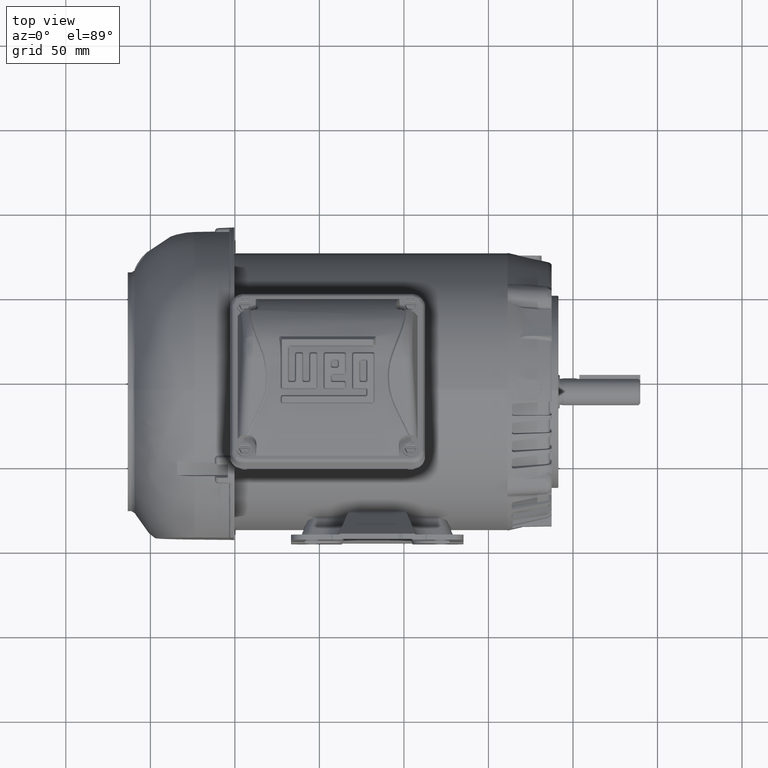
[diagram: clean part render]
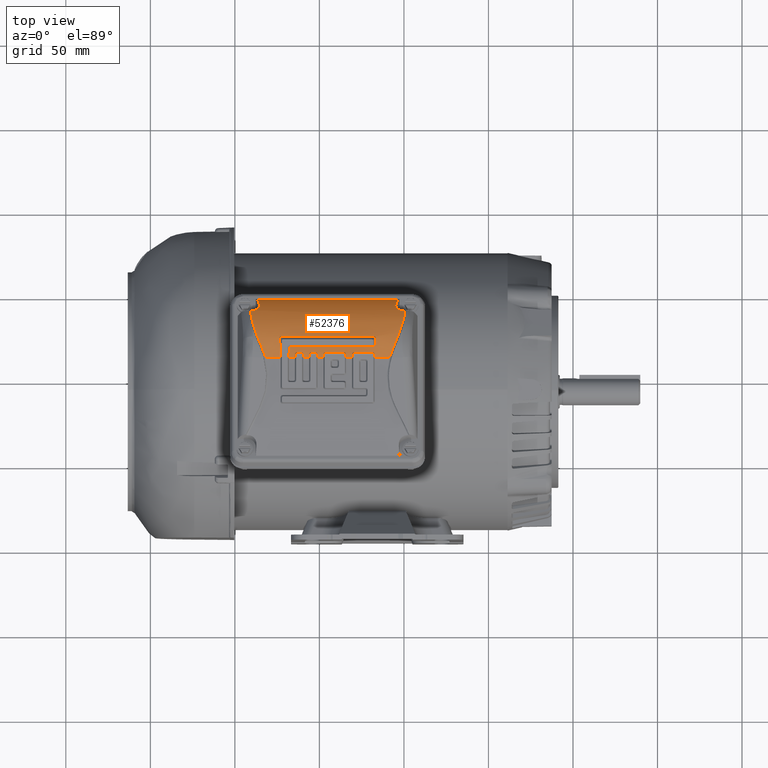
[diagram: same view with one face highlighted and labeled with its STEP entity id]
A machine part, top view. The second image highlights one B-rep face of the part: STEP entity #52376.
In plain terms, the highlighted cylindrical surface (partial cylindrical patch) has radius 35 mm, axis along (1, 0, -0).
Its self-contained STEP definition (entity closure, byte-faithful):
#189 = LINE ( 'NONE', #37885, #6628 ) ;
#274 = CARTESIAN_POINT ( 'NONE',  ( -1.466452934350112036, 1.006659624305443090, 5.639500285502733412 ) ) ;
#509 = CARTESIAN_POINT ( 'NONE',  ( 1.284718894867175276, 0.9460661894482007561, 5.664110852447361566 ) ) ;
#579 = CARTESIAN_POINT ( 'NONE',  ( -1.400515972239716467, 1.648601271075974095, 5.068232297163727473 ) ) ;
#650 = DIRECTION ( 'NONE',  ( -1.000000000000000000, -6.585600073891869161E-13, 1.161218977182799872E-13 ) ) ;
#710 = LINE ( 'NONE', #1516, #49013 ) ;
#875 = ORIENTED_EDGE ( 'NONE', *, *, #2237, .T. ) ;
#994 = CARTESIAN_POINT ( 'NONE',  ( -0.2031073955313105750, 0.5741215800176768802, 5.748789210275119466 ) ) ;
#1266 = CARTESIAN_POINT ( 'NONE',  ( -0.2389058627761657394, 0.5355945490757283434, 5.751540010358119126 ) ) ;
#1294 = CARTESIAN_POINT ( 'NONE',  ( 1.933233197566395001, 1.257718154086662876, 5.500648002945903059 ) ) ;
#1356 = CARTESIAN_POINT ( 'NONE',  ( 1.245232728132519728, 0.5741215800186008078, 5.748789210274779293 ) ) ;
#1516 = CARTESIAN_POINT ( 'NONE',  ( -2.040810988791196934, 1.834461883122429082, 4.417998778469157450 ) ) ;
#1518 = CARTESIAN_POINT ( 'NONE',  ( -0.7019752115818916893, 0.6606320762574469097, 5.738656359903063553 ) ) ;
#1586 = CARTESIAN_POINT ( 'NONE',  ( -0.2378695045080842507, 0.4571551337510771362, 5.753762487836040052 ) ) ;
#1844 = CARTESIAN_POINT ( 'NONE',  ( -2.040810988792657543, 0.4571551337500944778, 5.753762487836457495 ) ) ;
#2124 = EDGE_CURVE ( 'NONE', #9608, #28891, #24688, .T. ) ;
#2206 = ORIENTED_EDGE ( 'NONE', *, *, #2124, .T. ) ;
#2237 = EDGE_CURVE ( 'NONE', #32734, #21962, #33329, .T. ) ;
#2311 = CARTESIAN_POINT ( 'NONE',  ( 0.09430545460199721286, 0.5412370511233103310, 5.751205430180874600 ) ) ;
#2423 = CARTESIAN_POINT ( 'NONE',  ( -0.3951705769299347359, 0.5687753932731278717, 5.749235892290123218 ) ) ;
#2484 = VERTEX_POINT ( 'NONE', #8535 ) ;
#2566 = ORIENTED_EDGE ( 'NONE', *, *, #29687, .T. ) ;
#2583 = CARTESIAN_POINT ( 'NONE',  ( 1.296849037721556908, 0.9442196768828987619, 5.664810342050635050 ) ) ;
#2858 = ORIENTED_EDGE ( 'NONE', *, *, #19261, .T. ) ;
#3226 = CARTESIAN_POINT ( 'NONE',  ( -0.5706114307873294544, 0.5412370511228862258, 5.751205430181029143 ) ) ;
#3470 = CARTESIAN_POINT ( 'NONE',  ( -1.251654500711387730, 0.4571551337505984636, 5.753762487836276307 ) ) ;
#3761 = VECTOR ( 'NONE', #9628, 39.37007874015748143 ) ;
#3775 = CARTESIAN_POINT ( 'NONE',  ( -0.9027863898974115564, 0.4571551337506527535, 5.753762487836197259 ) ) ;
#3930 = CARTESIAN_POINT ( 'NONE',  ( 1.299380469571228103, 0.7396624327257854681, 5.724491838111709363 ) ) ;
#3973 = B_SPLINE_CURVE_WITH_KNOTS ( 'NONE', 3,
 ( #19515, #28420, #3226, #40929, #20314, #36864, #48792, #28154, #40120, #48527 ),
 .UNSPECIFIED., .F., .F.,
 ( 4, 2, 2, 2, 4 ),
 ( 3.469446951953614189E-18, 0.0004309042933996566410, 0.0008618085867993098125, 0.001292712880198962876, 0.001723617173598616156 ),
 .UNSPECIFIED. ) ;
#3983 = EDGE_CURVE ( 'NONE', #28456, #52996, #28435, .T. ) ;
#4099 = CARTESIAN_POINT ( 'NONE',  ( -1.347499175956810902, 0.7160025159534055827, 5.729231997978716961 ) ) ;
#4131 = CARTESIAN_POINT ( 'NONE',  ( -0.5703279472027472652, 0.4571551337508653612, 5.753762487836119099 ) ) ;
#4324 = CARTESIAN_POINT ( 'NONE',  ( -1.567467633986744158, 1.324174238711606888, 5.447649192385124017 ) ) ;
#4361 = CARTESIAN_POINT ( 'NONE',  ( -1.431675185181719545, 1.601160484825227437, 5.144033777448451694 ) ) ;
#4407 = CARTESIAN_POINT ( 'NONE',  ( -2.040810988792736147, 0.5741215800165023753, 5.748789210275552009 ) ) ;
#4495 = LINE ( 'NONE', #37333, #32335 ) ;
#4566 = CARTESIAN_POINT ( 'NONE',  ( -0.9139300102685649074, 0.9442100614471790054, 5.664813976310134613 ) ) ;
#4590 = CARTESIAN_POINT ( 'NONE',  ( -1.460941677914902037, 0.9918341266495268593, 5.645878965871017563 ) ) ;
#4812 = CARTESIAN_POINT ( 'NONE',  ( 1.817564707440174177, 0.9233346135093167817, 5.672580171568031737 ) ) ;
#4835 = ORIENTED_EDGE ( 'NONE', *, *, #10522, .T. ) ;
#4862 = CARTESIAN_POINT ( 'NONE',  ( -1.528115850324147873, 1.186831287847459393, 5.544712337206945563 ) ) ;
#5052 = CARTESIAN_POINT ( 'NONE',  ( -0.2381529880926690490, 0.5412370511231003878, 5.751205430180953648 ) ) ;
#5063 = CARTESIAN_POINT ( 'NONE',  ( 1.807514307211985694, 1.608838963630776053, 5.132397815322599754 ) ) ;
#5081 = CARTESIAN_POINT ( 'NONE',  ( 1.830297180186496453, 0.9561057022526889826, 5.660256144333112083 ) ) ;
#5125 = CARTESIAN_POINT ( 'NONE',  ( -1.589255485270685719, 1.418614578989097819, 5.363794630249837603 ) ) ;
#5279 = CARTESIAN_POINT ( 'NONE',  ( 0.6217099877010905384, 0.5298803435237874337, 5.751842014026653516 ) ) ;
#5501 = LINE ( 'NONE', #47001, #49800 ) ;
#5601 = EDGE_CURVE ( 'NONE', #31975, #42598, #17896, .T. ) ;
#5813 = ORIENTED_EDGE ( 'NONE', *, *, #32725, .T. ) ;
#6204 = CARTESIAN_POINT ( 'NONE',  ( -1.418467638778607265, 0.8809837207993671537, 5.689480208133996797 ) ) ;
#6257 = VECTOR ( 'NONE', #24033, 39.37007874015748143 ) ;
#6628 = VECTOR ( 'NONE', #33520, 39.37007874015748143 ) ;
#6629 = CARTESIAN_POINT ( 'NONE',  ( -0.3765608720272020093, 0.4571551337511574609, 5.753762487836072026 ) ) ;
#6640 = ORIENTED_EDGE ( 'NONE', *, *, #19374, .T. ) ;
#6765 = CARTESIAN_POINT ( 'NONE',  ( 1.782998289173523654, 1.706177845771787549, 4.957785730032794547 ) ) ;
#6868 = EDGE_CURVE ( 'NONE', #23931, #32734, #34604, .T. ) ;
#6922 = CARTESIAN_POINT ( 'NONE',  ( 0.09355257991849655341, 0.5355945490759403960, 5.751540010358040078 ) ) ;
#7174 = CARTESIAN_POINT ( 'NONE',  ( -1.481755870683612475, 1.834461883121358161, 4.417998778469550913 ) ) ;
#7273 = CARTESIAN_POINT ( 'NONE',  ( -1.423438148582142571, 1.785368060120958278, 4.787829620818037313 ) ) ;
#7307 = CARTESIAN_POINT ( 'NONE',  ( 1.806383100128525099, 1.785368060122961342, 4.787829620817416476 ) ) ;
#7554 = CARTESIAN_POINT ( 'NONE',  ( 1.297250279500883563, 0.7288202824350535902, 5.726726703301005195 ) ) ;
#7671 = EDGE_CURVE ( 'NONE', #31250, #16539, #49398, .T. ) ;
#7881 = CARTESIAN_POINT ( 'NONE',  ( -0.04410242933271878857, 0.4814025021392540071, 5.753762487835992978 ) ) ;
#7907 = LINE ( 'NONE', #24430, #35234 ) ;
#7968 = CARTESIAN_POINT ( 'NONE',  ( -0.5298293338894709548, 0.5741215800174677142, 5.748789210275196737 ) ) ;
#8170 = CARTESIAN_POINT ( 'NONE',  ( -1.450041959617669685, 1.586746268159912265, 5.165075401057964477 ) ) ;
#8327 = EDGE_CURVE ( 'NONE', #51928, #18292, #37733, .T. ) ;
#8411 = CARTESIAN_POINT ( 'NONE',  ( -1.548867159639266022, 1.256086408840686008, 5.498716739003790543 ) ) ;
#8502 = EDGE_CURVE ( 'NONE', #25944, #19779, #11878, .T. ) ;
#8535 = CARTESIAN_POINT ( 'NONE',  ( 1.285731341446281428, 0.4571551337522181124, 5.753762487835685668 ) ) ;
#8616 = CARTESIAN_POINT ( 'NONE',  ( 1.274870006870209460, 0.7048685109252528225, 5.731315241731405052 ) ) ;
#8648 = B_SPLINE_CURVE_WITH_KNOTS ( 'NONE', 3,
 ( #11215, #18559, #35106, #6629 ),
 .UNSPECIFIED., .F., .F.,
 ( 4, 4 ),
 ( 0.000000000000000000, 1.000000000000000000 ),
 .UNSPECIFIED. ) ;
#8852 = CARTESIAN_POINT ( 'NONE',  ( -0.2387650361526417464, 0.5298803435232385395, 5.751842014026850691 ) ) ;
#8880 = CARTESIAN_POINT ( 'NONE',  ( 1.749245462982391919, 0.7582068930042163979, 5.721160243230220210 ) ) ;
#8921 = CARTESIAN_POINT ( 'NONE',  ( -2.040810988792818748, 0.7004029715545964097, 5.732122486022362295 ) ) ;
#8929 = CARTESIAN_POINT ( 'NONE',  ( -1.477266659313943853, 1.036087531391977956, 5.626430332971059656 ) ) ;
#9145 = CARTESIAN_POINT ( 'NONE',  ( 1.905460906856886627, 1.169049106543245786, 5.555643847564699200 ) ) ;
#9177 = CARTESIAN_POINT ( 'NONE',  ( -0.9243861128490153956, 0.9380569255343909063, 5.667124033285590556 ) ) ;
#9244 = ORIENTED_EDGE ( 'NONE', *, *, #22474, .T. ) ;
#9341 = CARTESIAN_POINT ( 'NONE',  ( 0.7586102919313484350, 0.5298803435238748083, 5.751842014026621541 ) ) ;
#9460 = CARTESIAN_POINT ( 'NONE',  ( -1.347499175956810902, 0.7160025159534055827, 5.729231997978716961 ) ) ;
#9491 = CARTESIAN_POINT ( 'NONE',  ( 0.6217099877010905384, 0.5298803435237874337, 5.751842014026653516 ) ) ;
#9551 = B_SPLINE_CURVE_WITH_KNOTS ( 'NONE', 3,
 ( #34327, #50886, #26144, #22122 ),
 .UNSPECIFIED., .F., .F.,
 ( 4, 4 ),
 ( 0.000000000000000000, 1.000000000000000000 ),
 .UNSPECIFIED. ) ;
#9608 = VERTEX_POINT ( 'NONE', #36497 ) ;
#9628 = DIRECTION ( 'NONE',  ( 1.000000000000000000, 6.384077141365900647E-13, -2.323788532076114928E-13 ) ) ;
#9646 = CARTESIAN_POINT ( 'NONE',  ( -0.2317146877734809485, 0.5570179302209636862, 5.750145575975799339 ) ) ;
#9659 = CARTESIAN_POINT ( 'NONE',  ( 1.819326356215502871, 1.597456164105511833, 5.149443168283458050 ) ) ;
#9907 = LINE ( 'NONE', #18583, #3761 ) ;
#10190 = ORIENTED_EDGE ( 'NONE', *, *, #8502, .T. ) ;
#10223 = CARTESIAN_POINT ( 'NONE',  ( 1.864700822229850230, 1.834461883122433301, 4.417998778469157450 ) ) ;
#10230 = B_SPLINE_CURVE_WITH_KNOTS ( 'NONE', 3,
 ( #24427, #37734, #36942, #12760, #579, #33101, #32839, #28759, #4361, #8170, #32299, #24697, #49674, #37458, #41266, #29026 ),
 .UNSPECIFIED., .F., .F.,
 ( 4, 2, 2, 2, 2, 2, 2, 4 ),
 ( 0.000000000000000000, 0.002371341522123194840, 0.003557012283184750844, 0.004742683044246307281, 0.005928353805307863718, 0.007114024566369420155, 0.008299695327430977460, 0.009485366088492533029 ),
 .UNSPECIFIED. ) ;
#10238 = CARTESIAN_POINT ( 'NONE',  ( -0.07887394008947788693, 0.5741215800177570383, 5.748789210275087491 ) ) ;
#10427 = CARTESIAN_POINT ( 'NONE',  ( 0.09458893818656050057, 0.4814025021393517623, 5.753762487835960115 ) ) ;
#10505 = CARTESIAN_POINT ( 'NONE',  ( -0.04320689768823646193, 0.5298803435233637726, 5.751842014026810723 ) ) ;
#10522 = EDGE_CURVE ( 'NONE', #19038, #51928, #36851, .T. ) ;
#10831 = CARTESIAN_POINT ( 'NONE',  ( -0.3799007926168078142, 0.5520517780008874498, 5.750501495916783945 ) ) ;
#11009 = CYLINDRICAL_SURFACE ( 'NONE', #38043, 1.377952755905512028 ) ;
#11108 = CARTESIAN_POINT ( 'NONE',  ( 1.634599452259939190, 0.4571551337524385472, 5.753762487835607509 ) ) ;
#11215 = CARTESIAN_POINT ( 'NONE',  ( -0.3756653403829000037, 0.5298803435231503878, 5.751842014026889771 ) ) ;
#11359 = EDGE_CURVE ( 'NONE', #29533, #39940, #10230, .T. ) ;
#11368 = CARTESIAN_POINT ( 'NONE',  ( 1.660630073845786869, 0.5442113689305013713, 5.753762487835596851 ) ) ;
#11496 = EDGE_CURVE ( 'NONE', #34975, #9608, #50475, .T. ) ;
#11530 = CARTESIAN_POINT ( 'NONE',  ( -2.040810988792980396, 0.4571551337500944778, 4.375809731930944579 ) ) ;
#11608 = CARTESIAN_POINT ( 'NONE',  ( 1.299380469571228103, 0.7396624327257854681, 5.724491838111709363 ) ) ;
#11878 = B_SPLINE_CURVE_WITH_KNOTS ( 'NONE', 3,
 ( #51688, #22409, #14524, #2583, #35413, #40013, #31853, #19136, #48415, #35673, #18872, #43555 ),
 .UNSPECIFIED., .F., .F.,
 ( 4, 2, 2, 2, 2, 4 ),
 ( 5.594315114139762021E-17, 0.0002341133517512138627, 0.0004682267035023717806, 0.0009364534070046824123, 0.001404680110506993044, 0.001872906814009303459 ),
 .UNSPECIFIED. ) ;
#11879 = LINE ( 'NONE', #45243, #13287 ) ;
#11955 = CARTESIAN_POINT ( 'NONE',  ( 0.7586102919313484350, 0.5298803435238748083, 5.751842014026621541 ) ) ;
#11958 = EDGE_CURVE ( 'NONE', #52996, #22963, #48206, .T. ) ;
#12064 = CARTESIAN_POINT ( 'NONE',  ( -1.347499175956810902, 0.7160025159534055827, 5.729231997978716961 ) ) ;
#12171 = EDGE_CURVE ( 'NONE', #49083, #46156, #710, .T. ) ;
#12276 = EDGE_CURVE ( 'NONE', #21659, #19763, #9551, .T. ) ;
#12406 = CARTESIAN_POINT ( 'NONE',  ( -1.610315097424049213, 1.556247672758876099, 5.206923049485157051 ) ) ;
#12607 = CARTESIAN_POINT ( 'NONE',  ( -2.040810988792736147, 0.5741215800165031524, 5.748789210275552009 ) ) ;
#12649 = EDGE_CURVE ( 'NONE', #42553, #49083, #36586, .T. ) ;
#12661 = EDGE_CURVE ( 'NONE', #31315, #44710, #17238, .T. ) ;
#12673 = CARTESIAN_POINT ( 'NONE',  ( -0.6561107254276437040, 0.7004029715554782598, 5.732122486022039887 ) ) ;
#12760 = CARTESIAN_POINT ( 'NONE',  ( -1.398384362301367423, 1.656314335770129764, 5.054788471283070628 ) ) ;
#12812 = VERTEX_POINT ( 'NONE', #28423 ) ;
#12989 = CARTESIAN_POINT ( 'NONE',  ( -1.504154572089307473, 1.112434754973292028, 5.588727938309429710 ) ) ;
#13072 = EDGE_CURVE ( 'NONE', #47176, #21659, #189, .T. ) ;
#13200 = CARTESIAN_POINT ( 'NONE',  ( 1.895964191323639580, 1.139677719759191632, 5.572901022698395046 ) ) ;
#13227 = CARTESIAN_POINT ( 'NONE',  ( -0.9360394657918602590, 0.8946963304671003980, 5.682451036452960125 ) ) ;
#13228 = VERTEX_POINT ( 'NONE', #44070 ) ;
#13255 = CARTESIAN_POINT ( 'NONE',  ( -0.2381680150562869580, 0.5056555117522215648, 5.753122329899637677 ) ) ;
#13287 = VECTOR ( 'NONE', #40908, 39.37007874015748143 ) ;
#13424 = CARTESIAN_POINT ( 'NONE',  ( 0.5803158427431929223, 0.5741215800181763695, 5.748789210274938277 ) ) ;
#13468 = CARTESIAN_POINT ( 'NONE',  ( 1.988412195904385449, 1.506111031233708264, 5.273225475716125210 ) ) ;
#13472 = CARTESIAN_POINT ( 'NONE',  ( 1.258658648405314162, 0.7004029715566529868, 5.732122486021605567 ) ) ;
#13489 = DIRECTION ( 'NONE',  ( -1.000000000000000000, -6.384077141365900647E-13, 2.323788532076114928E-13 ) ) ;
#13500 = CARTESIAN_POINT ( 'NONE',  ( -0.9017739433193563414, 0.9460661894468052058, 5.664110852447874045 ) ) ;
#13665 = CARTESIAN_POINT ( 'NONE',  ( 1.253004549288059044, 0.7004029715566968406, 5.732122486021591357 ) ) ;
#13742 = CARTESIAN_POINT ( 'NONE',  ( 1.730444122822631936, 0.7160025179009448237, 5.729231997605906734 ) ) ;
#14007 = CARTESIAN_POINT ( 'NONE',  ( -0.7019752115818916893, 0.6606320762574469097, 5.738656359903063553 ) ) ;
#14013 = CARTESIAN_POINT ( 'NONE',  ( 1.909653922545787363, 1.182333373575261914, 5.547508307864492672 ) ) ;
#14053 = CARTESIAN_POINT ( 'NONE',  ( -0.7019752115818916893, 0.6606320762574469097, 5.738656359903063553 ) ) ;
#14228 = CARTESIAN_POINT ( 'NONE',  ( -0.7001202575780127724, 0.6716684133451746863, 5.736972220205326600 ) ) ;
#14288 = ORIENTED_EDGE ( 'NONE', *, *, #13072, .T. ) ;
#14335 = CARTESIAN_POINT ( 'NONE',  ( -1.448080005782699464, 0.9579989087723921326, 5.659519110613126180 ) ) ;
#14336 = ORIENTED_EDGE ( 'NONE', *, *, #44237, .T. ) ;
#14506 = CARTESIAN_POINT ( 'NONE',  ( -0.6915590905923066911, 0.6860113456131202714, 5.734629844317383984 ) ) ;
#14524 = CARTESIAN_POINT ( 'NONE',  ( 1.290879591717237096, 0.9457213802924461232, 5.664241905080012351 ) ) ;
#14570 = CARTESIAN_POINT ( 'NONE',  ( -0.04383475681276469138, 0.5413002080951242467, 5.751201467228138853 ) ) ;
#14631 = CARTESIAN_POINT ( 'NONE',  ( -0.4113323827841409153, 0.5741215800175442086, 5.748789210275165651 ) ) ;
#14791 = VERTEX_POINT ( 'NONE', #21572 ) ;
#14827 = VERTEX_POINT ( 'NONE', #31825 ) ;
#15008 = CARTESIAN_POINT ( 'NONE',  ( 0.09369340654202144847, 0.5298803435234519243, 5.751842014026771643 ) ) ;
#15040 = CARTESIAN_POINT ( 'NONE',  ( 0.1236304963566428328, 0.5730818960170048770, 5.748879107235877584 ) ) ;
#15168 = CARTESIAN_POINT ( 'NONE',  ( 1.730444122822631936, 0.7160025179009448237, 5.729231997605906734 ) ) ;
#15184 = CARTESIAN_POINT ( 'NONE',  ( -0.04320689768823646193, 0.5298803435233637726, 5.751842014026810723 ) ) ;
#15293 = EDGE_CURVE ( 'NONE', #39183, #25944, #7907, .T. ) ;
#15307 = EDGE_CURVE ( 'NONE', #13228, #36235, #24165, .T. ) ;
#15607 = CARTESIAN_POINT ( 'NONE',  ( 1.279510734958694274, 0.5571065861153865484, 5.750139029795521495 ) ) ;
#15609 = ORIENTED_EDGE ( 'NONE', *, *, #18586, .T. ) ;
#15636 = ORIENTED_EDGE ( 'NONE', *, *, #11496, .T. ) ;
#16375 = LINE ( 'NONE', #24750, #25724 ) ;
#16526 = CARTESIAN_POINT ( 'NONE',  ( -0.9358952638026181159, 0.9177676126366740572, 5.674511790485415652 ) ) ;
#16539 = VERTEX_POINT ( 'NONE', #51010 ) ;
#16548 = CARTESIAN_POINT ( 'NONE',  ( -1.604350663666099130, 1.504536968062009761, 5.272187340731867344 ) ) ;
#16587 = CARTESIAN_POINT ( 'NONE',  ( -1.309633345818226768, 0.6310030717153022328, 5.745488479309863727 ) ) ;
#16941 =( BOUNDED_CURVE ( )  B_SPLINE_CURVE ( 3, ( #23848, #48817, #40415, #48012 ),
 .UNSPECIFIED., .F., .T. ) 
 B_SPLINE_CURVE_WITH_KNOTS ( ( 4, 4 ),
 ( 2.818469218007245480, 2.935108938681141755 ),
 .UNSPECIFIED. ) 
 CURVE ( )  GEOMETRIC_REPRESENTATION_ITEM ( )  RATIONAL_B_SPLINE_CURVE ( ( 1.000000000000000000, 0.9988665859326359975, 0.9988665859326359975, 1.000000000000000000 ) ) 
 REPRESENTATION_ITEM ( '' )  );
#17234 = CARTESIAN_POINT ( 'NONE',  ( 0.6069792638774589300, 0.5654526716924909158, 5.749506552584928265 ) ) ;
#17238 = B_SPLINE_CURVE_WITH_KNOTS ( 'NONE', 3,
 ( #11108, #11368, #40399, #15168 ),
 .UNSPECIFIED., .F., .F.,
 ( 4, 4 ),
 ( 0.000000000000000000, 1.000000000000000000 ),
 .UNSPECIFIED. ) ;
#17344 = CARTESIAN_POINT ( 'NONE',  ( -1.448564288203611827, 0.9592601420705078041, 5.659026321799833781 ) ) ;
#17495 = ORIENTED_EDGE ( 'NONE', *, *, #7671, .T. ) ;
#17611 = CARTESIAN_POINT ( 'NONE',  ( -0.2387650361526417464, 0.5298803435232385395, 5.751842014026850691 ) ) ;
#17831 = CARTESIAN_POINT ( 'NONE',  ( 1.951536006804194479, 1.325601141440422071, 5.448949016627516073 ) ) ;
#17891 = CARTESIAN_POINT ( 'NONE',  ( 1.250959830689174934, 0.5741215800186051377, 5.748789210274777517 ) ) ;
#17896 = B_SPLINE_CURVE_WITH_KNOTS ( 'NONE', 3,
 ( #1356, #17891, #32137, #36247, #42558, #15607, #44369, #19424, #35972, #51965 ),
 .UNSPECIFIED., .F., .F.,
 ( 4, 2, 2, 2, 4 ),
 ( 0.000000000000000000, 0.0004311163130257834593, 0.0008622326260515669185, 0.001293348939077350324, 0.001724465252103133837 ),
 .UNSPECIFIED. ) ;
#17941 = EDGE_CURVE ( 'NONE', #18831, #28456, #20871, .T. ) ;
#18164 = B_SPLINE_CURVE_WITH_KNOTS ( 'NONE', 3,
 ( #22124, #18582, #43264, #34861, #51403, #14506, #38674, #14228, #31032, #1518 ),
 .UNSPECIFIED., .F., .F.,
 ( 4, 2, 2, 2, 4 ),
 ( 0.000000000000000000, 0.0004260741118579666016, 0.0008521482237159332031, 0.001278222335573899696, 0.001704296447431866406 ),
 .UNSPECIFIED. ) ;
#18292 = VERTEX_POINT ( 'NONE', #26682 ) ;
#18380 = CARTESIAN_POINT ( 'NONE',  ( 1.730444122822631936, 0.7160025179009448237, 5.729231997605906734 ) ) ;
#18556 = CARTESIAN_POINT ( 'NONE',  ( 0.7628363623119983616, 0.5520397422409054622, 5.750502427286818374 ) ) ;
#18559 = CARTESIAN_POINT ( 'NONE',  ( -0.3762623614792259263, 0.5056555117520713516, 5.753122329899673204 ) ) ;
#18582 = CARTESIAN_POINT ( 'NONE',  ( -0.6617752943715606850, 0.7004029715554745961, 5.732122486022041663 ) ) ;
#18583 = CARTESIAN_POINT ( 'NONE',  ( -2.040810988792657543, 0.4571551337500952550, 5.753762487836457495 ) ) ;
#18586 = EDGE_CURVE ( 'NONE', #39940, #41651, #5501, .T. ) ;
#18727 = CARTESIAN_POINT ( 'NONE',  ( 1.864700822229850230, 1.834461883122433301, 4.417998778469157450 ) ) ;
#18830 = CARTESIAN_POINT ( 'NONE',  ( 0.09458893818657895802, 0.4571551337514574986, 5.753762487835961004 ) ) ;
#18831 = VERTEX_POINT ( 'NONE', #25413 ) ;
#18861 = CARTESIAN_POINT ( 'NONE',  ( 0.09791947692267032044, 0.5520397422404835774, 5.750502427286973806 ) ) ;
#18872 = CARTESIAN_POINT ( 'NONE',  ( 1.319889754279700123, 0.9004942892745102512, 5.680509535119444564 ) ) ;
#18973 = CARTESIAN_POINT ( 'NONE',  ( -0.3903960642065283371, 0.5654526716918544249, 5.749506552585160080 ) ) ;
#19038 = VERTEX_POINT ( 'NONE', #1586 ) ;
#19136 = CARTESIAN_POINT ( 'NONE',  ( 1.317264153815112415, 0.9235772547895318985, 5.672433861959983226 ) ) ;
#19198 = CARTESIAN_POINT ( 'NONE',  ( -0.4170594853407952884, 0.5741215800175394346, 5.748789210275166539 ) ) ;
#19261 = EDGE_CURVE ( 'NONE', #46569, #19038, #4495, .T. ) ;
#19374 = EDGE_CURVE ( 'NONE', #14827, #48849, #9907, .T. ) ;
#19395 = VERTEX_POINT ( 'NONE', #13424 ) ;
#19424 = CARTESIAN_POINT ( 'NONE',  ( 1.285999013965888782, 0.5413002080959736784, 5.751201467227827990 ) ) ;
#19515 = CARTESIAN_POINT ( 'NONE',  ( -0.5712234788473047331, 0.5298803435230260428, 5.751842014026928851 ) ) ;
#19527 = ORIENTED_EDGE ( 'NONE', *, *, #40762, .T. ) ;
#19763 = VERTEX_POINT ( 'NONE', #34799 ) ;
#19779 = VERTEX_POINT ( 'NONE', #50827 ) ;
#20114 = DIRECTION ( 'NONE',  ( 1.000000000000000000, 6.384077141365900647E-13, -2.323788532076114928E-13 ) ) ;
#20314 = CARTESIAN_POINT ( 'NONE',  ( -0.5641731304681417702, 0.5570179302207481919, 5.750145575975876611 ) ) ;
#20479 = ORIENTED_EDGE ( 'NONE', *, *, #3983, .T. ) ;
#20595 = CARTESIAN_POINT ( 'NONE',  ( -0.9369448056032938510, 0.9004943076629545740, 5.680509528961939836 ) ) ;
#20608 = CARTESIAN_POINT ( 'NONE',  ( -0.9360394657918602590, 0.8946963304671003980, 5.682451036452960125 ) ) ;
#20833 = CARTESIAN_POINT ( 'NONE',  ( 1.264298117029624580, 0.7012899658727579366, 5.731964327865846975 ) ) ;
#20871 = B_SPLINE_CURVE_WITH_KNOTS ( 'NONE', 3,
 ( #47407, #10238, #26753, #43323, #35195, #22712, #51727, #14570, #31100, #10505 ),
 .UNSPECIFIED., .F., .F.,
 ( 4, 2, 2, 2, 4 ),
 ( 1.269581763356547708E-17, 0.0004311163130257983670, 0.0008622326260515840489, 0.001293348939077369839, 0.001724465252103155521 ),
 .UNSPECIFIED. ) ;
#20878 = CARTESIAN_POINT ( 'NONE',  ( -1.532363075432224608, 1.200538500351216120, 5.536062064239580138 ) ) ;
#20921 = CARTESIAN_POINT ( 'NONE',  ( -1.277685122297357978, 0.5442113689286237621, 5.753762487836278083 ) ) ;
#20924 = VERTEX_POINT ( 'NONE', #14053 ) ;
#21074 = CARTESIAN_POINT ( 'NONE',  ( 1.783592822554676660, 1.648217464276488853, 5.068889739249851090 ) ) ;
#21116 = CARTESIAN_POINT ( 'NONE',  ( -0.9079731923485838685, 0.9457147424543287384, 5.664244423083099278 ) ) ;
#21304 = CARTESIAN_POINT ( 'NONE',  ( 0.5860429452998479061, 0.5741215800181811435, 5.748789210274938277 ) ) ;
#21361 = CARTESIAN_POINT ( 'NONE',  ( 1.880446586188643909, 1.093424462915193018, 5.598252850539789272 ) ) ;
#21563 = CARTESIAN_POINT ( 'NONE',  ( 0.5803158427431929223, 0.5741215800181763695, 5.748789210274938277 ) ) ;
#21572 = CARTESIAN_POINT ( 'NONE',  ( 0.1350875514998484406, 0.5741215800178929296, 5.748789210275039530 ) ) ;
#21597 = CARTESIAN_POINT ( 'NONE',  ( -0.2088279463380156020, 0.5730818960167981535, 5.748879107235953967 ) ) ;
#21611 = CARTESIAN_POINT ( 'NONE',  ( 1.833261743013533840, 1.586552956018922211, 5.165353715004570745 ) ) ;
#21629 = CARTESIAN_POINT ( 'NONE',  ( 1.900431594979517858, 1.153334092211641959, 5.565045040698684886 ) ) ;
#21659 = VERTEX_POINT ( 'NONE', #4131 ) ;
#21764 = ORIENTED_EDGE ( 'NONE', *, *, #15307, .T. ) ;
#21818 = CARTESIAN_POINT ( 'NONE',  ( 0.7780718193936551064, 0.5687488178506109326, 5.749238060340733369 ) ) ;
#21892 = CARTESIAN_POINT ( 'NONE',  ( 1.993260044425110289, 1.556247672589820885, 5.206923049022313954 ) ) ;
#21913 = EDGE_CURVE ( 'NONE', #46156, #29533, #38329, .T. ) ;
#21962 = VERTEX_POINT ( 'NONE', #12673 ) ;
#22122 = CARTESIAN_POINT ( 'NONE',  ( -0.5712234788473047331, 0.5298803435230260428, 5.751842014026928851 ) ) ;
#22124 = CARTESIAN_POINT ( 'NONE',  ( -0.6561107254276437040, 0.7004029715554782598, 5.732122486022039887 ) ) ;
#22152 = CARTESIAN_POINT ( 'NONE',  ( 1.944619626253153655, 1.556247684797442909, 5.206923058586149899 ) ) ;
#22216 = CARTESIAN_POINT ( 'NONE',  ( -1.385102393275262189, 0.8004124840450309586, 5.713088256302001788 ) ) ;
#22381 = CARTESIAN_POINT ( 'NONE',  ( 0.6022047511540529197, 0.5687753932737638074, 5.749235892289892291 ) ) ;
#22409 = CARTESIAN_POINT ( 'NONE',  ( 1.287827763124208769, 0.9460661894482033096, 5.664110852447364230 ) ) ;
#22435 = CARTESIAN_POINT ( 'NONE',  ( 1.908979339056760205, 1.180185317524999000, 5.548834864194443384 ) ) ;
#22474 = EDGE_CURVE ( 'NONE', #14791, #19395, #33215, .T. ) ;
#22524 = CARTESIAN_POINT ( 'NONE',  ( 1.286626873090415346, 0.5298803435242125381, 5.751842014026495420 ) ) ;
#22557 = ORIENTED_EDGE ( 'NONE', *, *, #24140, .T. ) ;
#22712 = CARTESIAN_POINT ( 'NONE',  ( -0.05032303581995838798, 0.5571065861145371167, 5.750139029795830581 ) ) ;
#22963 = VERTEX_POINT ( 'NONE', #30680 ) ;
#23016 = ORIENTED_EDGE ( 'NONE', *, *, #41813, .T. ) ;
#23447 = CARTESIAN_POINT ( 'NONE',  ( 0.1350875514998484406, 0.5741215800178929296, 5.748789210275039530 ) ) ;
#23653 = ORIENTED_EDGE ( 'NONE', *, *, #43130, .T. ) ;
#23848 = CARTESIAN_POINT ( 'NONE',  ( 1.318984417339809090, 0.8946963304685394691, 5.682451036452441429 ) ) ;
#23880 = CARTESIAN_POINT ( 'NONE',  ( -0.04410242933247740527, 0.4571551337513700686, 5.753762487835992978 ) ) ;
#23931 = VERTEX_POINT ( 'NONE', #3930 ) ;
#23995 = ORIENTED_EDGE ( 'NONE', *, *, #32881, .T. ) ;
#24033 = DIRECTION ( 'NONE',  ( 1.000000000000000000, 6.384077141365900647E-13, -2.323788532076114928E-13 ) ) ;
#24140 = EDGE_CURVE ( 'NONE', #16539, #46569, #8648, .T. ) ;
#24165 = LINE ( 'NONE', #49677, #43043 ) ;
#24427 = CARTESIAN_POINT ( 'NONE',  ( -1.400053337626946837, 1.706177845769753842, 4.957785730033527294 ) ) ;
#24430 = CARTESIAN_POINT ( 'NONE',  ( -2.040810988792991942, 0.9460661894460767884, 5.664110852448133393 ) ) ;
#24567 = ORIENTED_EDGE ( 'NONE', *, *, #30135, .T. ) ;
#24653 = CARTESIAN_POINT ( 'NONE',  ( -0.9027863898974964885, 0.6062207480182502106, 5.753762487836215911 ) ) ;
#24688 =( BOUNDED_CURVE ( )  B_SPLINE_CURVE ( 3, ( #3775, #24653, #33054, #20608 ),
 .UNSPECIFIED., .F., .F. ) 
 B_SPLINE_CURVE_WITH_KNOTS ( ( 4, 4 ),
 ( -1.225686219186172821E-13, 0.3231234355825494675 ),
 .UNSPECIFIED. ) 
 CURVE ( )  GEOMETRIC_REPRESENTATION_ITEM ( )  RATIONAL_B_SPLINE_CURVE ( ( 1.000000000000000000, 0.9913181796627441589, 0.9913181796627441589, 1.000000000000000000 ) ) 
 REPRESENTATION_ITEM ( '' )  );
#24697 = CARTESIAN_POINT ( 'NONE',  ( -1.485948626255871208, 1.568612991621208153, 5.190372093760692529 ) ) ;
#24719 = VECTOR ( 'NONE', #39540, 39.37007874015748143 ) ;
#24750 = CARTESIAN_POINT ( 'NONE',  ( -2.040810988792736147, 0.5741215800165023753, 5.748789210275552009 ) ) ;
#24803 = CARTESIAN_POINT ( 'NONE',  ( -0.7090193147218640801, 0.4571551337511141622, 5.753762487836150186 ) ) ;
#25137 = B_SPLINE_CURVE_WITH_KNOTS ( 'NONE', 3,
 ( #22524, #52529, #36009, #39071 ),
 .UNSPECIFIED., .F., .F.,
 ( 4, 4 ),
 ( 0.000000000000000000, 1.000000000000000000 ),
 .UNSPECIFIED. ) ;
#25161 = CARTESIAN_POINT ( 'NONE',  ( -0.9220010890556921135, 0.9399875673367467099, 5.666402345460330281 ) ) ;
#25183 = CARTESIAN_POINT ( 'NONE',  ( -1.516345801037440433, 1.149201329082846668, 5.568103681319398923 ) ) ;
#25213 = CARTESIAN_POINT ( 'NONE',  ( 0.6208144560566078995, 0.4814025021396004522, 5.753762487835837547 ) ) ;
#25379 = CARTESIAN_POINT ( 'NONE',  ( 1.883067623800477541, 1.563970708188612724, 5.196626315676433627 ) ) ;
#25394 = CARTESIAN_POINT ( 'NONE',  ( 1.811805298300957823, 0.9087993052710690023, 5.677684362555242892 ) ) ;
#25413 = CARTESIAN_POINT ( 'NONE',  ( -0.08460104264613248215, 0.5741215800177520423, 5.748789210275087491 ) ) ;
#25444 = CARTESIAN_POINT ( 'NONE',  ( -1.449289896257218491, 0.9611511671443191407, 5.658285853703853618 ) ) ;
#25592 = ORIENTED_EDGE ( 'NONE', *, *, #28410, .T. ) ;
#25652 = CARTESIAN_POINT ( 'NONE',  ( 1.781418765558484552, 1.655932805152874554, 5.055463388306669081 ) ) ;
#25666 = CARTESIAN_POINT ( 'NONE',  ( 1.979097816857727121, 1.449660266227055239, 5.335372108559004012 ) ) ;
#25724 = VECTOR ( 'NONE', #49198, 39.37007874015748143 ) ;
#25743 = CARTESIAN_POINT ( 'NONE',  ( -2.040810988792657543, 0.4571551337500944778, 5.753762487836457495 ) ) ;
#25919 = CARTESIAN_POINT ( 'NONE',  ( 1.928681374385939451, 1.556247684797436914, 5.206923058586149011 ) ) ;
#25944 = VERTEX_POINT ( 'NONE', #509 ) ;
#26122 = CARTESIAN_POINT ( 'NONE',  ( 0.7733055682853742230, 0.5654301475007700306, 5.749508429514323282 ) ) ;
#26144 = CARTESIAN_POINT ( 'NONE',  ( -0.5706264577509496672, 0.5056555117519174747, 5.753122329899721166 ) ) ;
#26178 = CARTESIAN_POINT ( 'NONE',  ( 1.790380900386661311, 1.632484026468541183, 5.095247961166266215 ) ) ;
#26245 = VERTEX_POINT ( 'NONE', #7968 ) ;
#26390 = CARTESIAN_POINT ( 'NONE',  ( 0.7885473817459687229, 0.5730818960174267618, 5.748879107235725705 ) ) ;
#26682 = CARTESIAN_POINT ( 'NONE',  ( -0.1973708911948066635, 0.5741215800176795447, 5.748789210275118577 ) ) ;
#26753 = CARTESIAN_POINT ( 'NONE',  ( -0.07320309233961792839, 0.5730977645152917077, 5.748877758893210732 ) ) ;
#26780 = EDGE_CURVE ( 'NONE', #21962, #20924, #18164, .T. ) ;
#27227 = CARTESIAN_POINT ( 'NONE',  ( 0.1007437549211835648, 0.5570179302211701877, 5.750145575975721179 ) ) ;
#27320 = EDGE_CURVE ( 'NONE', #42598, #2484, #25137, .T. ) ;
#27345 = CARTESIAN_POINT ( 'NONE',  ( -0.3762931995074279556, 0.5413002080949108619, 5.751201467228214348 ) ) ;
#27608 = CARTESIAN_POINT ( 'NONE',  ( -0.3756653403829000037, 0.5298803435231503878, 5.751842014026889771 ) ) ;
#27659 = CARTESIAN_POINT ( 'NONE',  ( -0.04320689768823646193, 0.5298803435233637726, 5.751842014026810723 ) ) ;
#27754 = CARTESIAN_POINT ( 'NONE',  ( 0.09369340654202144847, 0.5298803435234519243, 5.751842014026771643 ) ) ;
#28154 = CARTESIAN_POINT ( 'NONE',  ( -0.5412863890326782279, 0.5730818960165826592, 5.748879107236030350 ) ) ;
#28228 = ORIENTED_EDGE ( 'NONE', *, *, #11359, .T. ) ;
#28349 = ORIENTED_EDGE ( 'NONE', *, *, #17941, .T. ) ;
#28410 = EDGE_CURVE ( 'NONE', #19779, #23931, #16941, .T. ) ;
#28420 = CARTESIAN_POINT ( 'NONE',  ( -0.5713643054708275049, 0.5355945490755158467, 5.751540010358198174 ) ) ;
#28423 = CARTESIAN_POINT ( 'NONE',  ( 0.6217099877010905384, 0.5298803435237874337, 5.751842014026653516 ) ) ;
#28435 = B_SPLINE_CURVE_WITH_KNOTS ( 'NONE', 3,
 ( #27659, #52897, #7881, #23880 ),
 .UNSPECIFIED., .F., .F.,
 ( 4, 4 ),
 ( 0.000000000000000000, 1.000000000000000000 ),
 .UNSPECIFIED. ) ;
#28456 = VERTEX_POINT ( 'NONE', #15184 ) ;
#28759 = CARTESIAN_POINT ( 'NONE',  ( -1.424015716189988012, 1.609008192771061996, 5.132248963955442278 ) ) ;
#28891 = VERTEX_POINT ( 'NONE', #31387 ) ;
#28918 = ORIENTED_EDGE ( 'NONE', *, *, #53127, .T. ) ;
#29026 = CARTESIAN_POINT ( 'NONE',  ( -1.561674674706336585, 1.556247684795204700, 5.206923058586968800 ) ) ;
#29193 = CARTESIAN_POINT ( 'NONE',  ( 1.779089258336630452, 1.692940322044326429, 4.986195781032128238 ) ) ;
#29237 = CARTESIAN_POINT ( 'NONE',  ( -0.9343566407046867139, 0.9234962952986753848, 5.672463204761492683 ) ) ;
#29259 = CARTESIAN_POINT ( 'NONE',  ( -1.607891204759878567, 1.531179708289113206, 5.240073803935302088 ) ) ;
#29316 = ORIENTED_EDGE ( 'NONE', *, *, #5601, .T. ) ;
#29447 = CARTESIAN_POINT ( 'NONE',  ( 1.777741184571381305, 1.678545080869209283, 5.014506214506895709 ) ) ;
#29482 = CARTESIAN_POINT ( 'NONE',  ( -0.9017739433193563414, 0.9460661894468052058, 5.664110852447874045 ) ) ;
#29515 = CARTESIAN_POINT ( 'NONE',  ( -1.454329189322220328, 0.9743477595501303101, 5.653039832645606388 ) ) ;
#29533 = VERTEX_POINT ( 'NONE', #48560 ) ;
#29591 = ORIENTED_EDGE ( 'NONE', *, *, #45440, .T. ) ;
#29671 = CARTESIAN_POINT ( 'NONE',  ( 0.6210821285765605326, 0.5413002080955474637, 5.751201467227981645 ) ) ;
#29687 = EDGE_CURVE ( 'NONE', #41651, #31511, #33561, .T. ) ;
#29778 = CARTESIAN_POINT ( 'NONE',  ( -1.530259439625506479, 1.193730439485959138, 5.540377394592748139 ) ) ;
#29808 = CARTESIAN_POINT ( 'NONE',  ( 0.6211129666047628950, 0.5056555117526415621, 5.753122329899445830 ) ) ;
#29881 = VECTOR ( 'NONE', #36245, 39.37007874015748143 ) ;
#30092 = DIRECTION ( 'NONE',  ( 1.000000000000000000, 6.384077141365900647E-13, -2.323788532076114928E-13 ) ) ;
#30127 = CARTESIAN_POINT ( 'NONE',  ( -1.400053337626946837, 1.706177845769753842, 4.957785730033527294 ) ) ;
#30135 = EDGE_CURVE ( 'NONE', #28891, #39183, #43270, .T. ) ;
#30260 = CARTESIAN_POINT ( 'NONE',  ( 1.869240306680249653, 1.568492432389760882, 5.190535314949768164 ) ) ;
#30553 = CARTESIAN_POINT ( 'NONE',  ( 1.828943311330041288, 0.9525899602247785980, 5.661617243892156814 ) ) ;
#30680 = CARTESIAN_POINT ( 'NONE',  ( 0.09458893818657895802, 0.4571551337514574986, 5.753762487835961004 ) ) ;
#30744 = CARTESIAN_POINT ( 'NONE',  ( 0.8000044368891732205, 0.5741215800183165907, 5.748789210274882322 ) ) ;
#31032 = CARTESIAN_POINT ( 'NONE',  ( -0.7015851934706537341, 0.6662340879072218280, 5.737819963364379383 ) ) ;
#31100 = CARTESIAN_POINT ( 'NONE',  ( -0.04306604312135265539, 0.5355956829100585459, 5.751539950433374848 ) ) ;
#31250 = VERTEX_POINT ( 'NONE', #19198 ) ;
#31315 = VERTEX_POINT ( 'NONE', #33803 ) ;
#31387 = CARTESIAN_POINT ( 'NONE',  ( -0.9360394657918602590, 0.8946963304671003980, 5.682451036452960125 ) ) ;
#31511 = VERTEX_POINT ( 'NONE', #12064 ) ;
#31576 = CARTESIAN_POINT ( 'NONE',  ( 0.1293510471633366743, 0.5741215800178872675, 5.748789210275042194 ) ) ;
#31825 = CARTESIAN_POINT ( 'NONE',  ( 0.6208144560567422365, 0.4571551337517952840, 5.753762487835843764 ) ) ;
#31853 = CARTESIAN_POINT ( 'NONE',  ( 1.311697193483172930, 0.9338586135653399456, 5.668689278486066740 ) ) ;
#31975 = VERTEX_POINT ( 'NONE', #38760 ) ;
#32132 = DIRECTION ( 'NONE',  ( 1.000000000000000000, 6.384077141365900647E-13, -2.323788532076114928E-13 ) ) ;
#32137 = CARTESIAN_POINT ( 'NONE',  ( 1.256630678439035087, 0.5730977645161404732, 5.748877758892903422 ) ) ;
#32299 = CARTESIAN_POINT ( 'NONE',  ( -1.460731800353598731, 1.580120183047659888, 5.174433491400485252 ) ) ;
#32335 = VECTOR ( 'NONE', #33786, 39.37007874015748143 ) ;
#32549 = ORIENTED_EDGE ( 'NONE', *, *, #48440, .T. ) ;
#32555 = CARTESIAN_POINT ( 'NONE',  ( 0.7595058235758872511, 0.4814025021397578263, 5.753762487835806461 ) ) ;
#32617 = B_SPLINE_CURVE_WITH_KNOTS ( 'NONE', 3,
 ( #13742, #8880, #46299, #43045, #46576, #25394, #4812, #33827, #47117, #30553, #38719, #42499, #5081, #50656, #50384, #21361, #37924, #13200, #21629, #9145, #46848, #22435, #14013, #1294, #17831, #25666, #13468, #21892 ),
 .UNSPECIFIED., .F., .F.,
 ( 4, 2, 2, 1, 1, 1, 1, 2, 2, 2, 2, 1, 1, 2, 2, 2, 4 ),
 ( 0.000000000000000000, 0.1249999999999533984, 0.1874999999999295563, 0.2187499999999176215, 0.2343749999999114875, 0.2421874999999084066, 0.2460937499999072409, 0.2480468749999066858, 0.2499999999999061306, 0.3749999999999167333, 0.4374999999999222844, 0.4687499999999256151, 0.4843749999999263367, 0.4921874999999266698, 0.4999999999999270583, 0.7499999999999634737, 1.000000000000000000 ),
 .UNSPECIFIED. ) ;
#32628 = ORIENTED_EDGE ( 'NONE', *, *, #27320, .T. ) ;
#32725 = EDGE_CURVE ( 'NONE', #47389, #34066, #46127, .T. ) ;
#32734 = VERTEX_POINT ( 'NONE', #13665 ) ;
#32751 = CARTESIAN_POINT ( 'NONE',  ( 1.286626873090415346, 0.5298803435242125381, 5.751842014026495420 ) ) ;
#32797 = CARTESIAN_POINT ( 'NONE',  ( -0.2387650361526417464, 0.5298803435232385395, 5.751842014026850691 ) ) ;
#32839 = CARTESIAN_POINT ( 'NONE',  ( -1.411896675446542737, 1.624734552867219461, 5.107741478322584072 ) ) ;
#32881 = EDGE_CURVE ( 'NONE', #31511, #34975, #41622, .T. ) ;
#32991 = B_SPLINE_CURVE_WITH_KNOTS ( 'NONE', 3,
 ( #27754, #6922, #2311, #18861, #27227, #52198, #43812, #15040, #31576, #23447 ),
 .UNSPECIFIED., .F., .F.,
 ( 4, 2, 2, 2, 4 ),
 ( 2.447512862436146500E-17, 0.0004309042933996375590, 0.0008618085867992507235, 0.001292712880198863780, 0.001723617173598476944 ),
 .UNSPECIFIED. ) ;
#33015 = CARTESIAN_POINT ( 'NONE',  ( 1.253004549288059044, 0.7004029715566968406, 5.732122486021591357 ) ) ;
#33019 = ORIENTED_EDGE ( 'NONE', *, *, #12276, .T. ) ;
#33054 = CARTESIAN_POINT ( 'NONE',  ( -0.9139678237286141815, 0.7533451209635420032, 5.729783825604381597 ) ) ;
#33101 = CARTESIAN_POINT ( 'NONE',  ( -1.407283415644739799, 1.632762678214328300, 5.094794994916947317 ) ) ;
#33110 = CARTESIAN_POINT ( 'NONE',  ( -1.251654500711387730, 0.4571551337505984636, 5.753762487836276307 ) ) ;
#33180 = B_SPLINE_CURVE_WITH_KNOTS ( 'NONE', 3,
 ( #9491, #29808, #25213, #45597 ),
 .UNSPECIFIED., .F., .F.,
 ( 4, 4 ),
 ( 0.000000000000000000, 1.000000000000000000 ),
 .UNSPECIFIED. ) ;
#33215 = LINE ( 'NONE', #12607, #29881 ) ;
#33329 = LINE ( 'NONE', #8921, #52851 ) ;
#33349 = CARTESIAN_POINT ( 'NONE',  ( -0.2378695045080842507, 0.4571551337510771362, 5.753762487836040052 ) ) ;
#33520 = DIRECTION ( 'NONE',  ( 1.000000000000000000, 6.384077141365900647E-13, -2.323788532076114928E-13 ) ) ;
#33561 = B_SPLINE_CURVE_WITH_KNOTS ( 'NONE', 3,
 ( #42277, #29259, #16548, #45828, #5125, #50437, #4324, #49637, #8411, #41491, #38228, #20878, #29778, #46353, #4862, #25183, #12989, #37424, #8929, #274, #4590, #29515, #46085, #25444, #17344, #14335, #47168, #6204, #22216, #9460 ),
 .UNSPECIFIED., .F., .F.,
 ( 4, 2, 2, 2, 2, 1, 1, 2, 2, 2, 2, 1, 1, 1, 1, 2, 2, 4 ),
 ( 0.000000000000000000, 0.1250000000000112688, 0.2500000000000225375, 0.3750000000000338063, 0.4375000000000396905, 0.4687500000000425771, 0.4843750000000432987, 0.4921875000000442424, 0.5000000000000452971, 0.6250000000000566214, 0.6875000000000620615, 0.7187500000000645040, 0.7343750000000656142, 0.7421875000000669464, 0.7460937500000671685, 0.7480468750000668354, 0.7500000000000666134, 1.000000000000000000 ),
 .UNSPECIFIED. ) ;
#33687 = LINE ( 'NONE', #4407, #37480 ) ;
#33770 = CARTESIAN_POINT ( 'NONE',  ( 0.6218508422679744907, 0.5355956829104833172, 5.751539950433216752 ) ) ;
#33786 = DIRECTION ( 'NONE',  ( 1.000000000000000000, 6.384077141365900647E-13, -2.323788532076114928E-13 ) ) ;
#33803 = CARTESIAN_POINT ( 'NONE',  ( 1.634599452259939190, 0.4571551337524385472, 5.753762487835607509 ) ) ;
#33823 = CARTESIAN_POINT ( 'NONE',  ( -0.7090193147220655856, 0.5252921032015189784, 5.753762487836143080 ) ) ;
#33827 = CARTESIAN_POINT ( 'NONE',  ( 1.824110217065167960, 0.9401004821964428215, 5.666376683101633560 ) ) ;
#33893 = ORIENTED_EDGE ( 'NONE', *, *, #48538, .T. ) ;
#34066 = VERTEX_POINT ( 'NONE', #47104 ) ;
#34078 = CARTESIAN_POINT ( 'NONE',  ( 1.804127729760607091, 1.612707106511852340, 5.126479947262800430 ) ) ;
#34160 = EDGE_CURVE ( 'NONE', #34066, #31975, #33687, .T. ) ;
#34327 = CARTESIAN_POINT ( 'NONE',  ( -0.5703279472027472652, 0.4571551337508653612, 5.753762487836119099 ) ) ;
#34604 = B_SPLINE_CURVE_WITH_KNOTS ( 'NONE', 3,
 ( #11608, #44707, #7554, #45780, #37644, #53636, #8616, #20833, #13472, #33015 ),
 .UNSPECIFIED., .F., .F.,
 ( 4, 2, 2, 2, 4 ),
 ( 2.782487803465935901E-16, 0.0004254172277139359063, 0.0008508344554275934979, 0.001276251683141251198, 0.001701668910854908789 ),
 .UNSPECIFIED. ) ;
#34799 = CARTESIAN_POINT ( 'NONE',  ( -0.5712234788473047331, 0.5298803435230260428, 5.751842014026928851 ) ) ;
#34861 = CARTESIAN_POINT ( 'NONE',  ( -0.6780231117459557533, 0.6959172126445850592, 5.732920584211428583 ) ) ;
#34906 = EDGE_CURVE ( 'NONE', #18292, #18831, #11879, .T. ) ;
#34975 = VERTEX_POINT ( 'NONE', #3470 ) ;
#35106 = CARTESIAN_POINT ( 'NONE',  ( -0.3765608720273802001, 0.4814025021390326287, 5.753762487836069361 ) ) ;
#35112 = ORIENTED_EDGE ( 'NONE', *, *, #39412, .T. ) ;
#35195 = CARTESIAN_POINT ( 'NONE',  ( -0.05793762151186567649, 0.5654526716920675877, 5.749506552585081920 ) ) ;
#35234 = VECTOR ( 'NONE', #20114, 39.37007874015748143 ) ;
#35286 = B_SPLINE_CURVE_WITH_KNOTS ( 'NONE', 3,
 ( #21563, #21304, #42439, #22381, #17234, #38928, #38123, #29671, #33770, #5279 ),
 .UNSPECIFIED., .F., .F.,
 ( 4, 2, 2, 2, 4 ),
 ( 3.469446951953614189E-18, 0.0004311163130257944639, 0.0008622326260515854584, 0.001293348939077376344, 0.001724465252103167447 ),
 .UNSPECIFIED. ) ;
#35413 = CARTESIAN_POINT ( 'NONE',  ( 1.299711117546651806, 0.9430623258485820726, 5.665247848156571564 ) ) ;
#35521 = CARTESIAN_POINT ( 'NONE',  ( -0.3827814785146213539, 0.5571065861143239539, 5.750139029795909629 ) ) ;
#35673 = CARTESIAN_POINT ( 'NONE',  ( 1.320121102288183135, 0.9063625070969144604, 5.678500593340119806 ) ) ;
#35972 = CARTESIAN_POINT ( 'NONE',  ( 1.286767727657299076, 0.5355956829109081996, 5.751539950433057768 ) ) ;
#36009 = CARTESIAN_POINT ( 'NONE',  ( 1.285731341445934595, 0.4814025021400799575, 5.753762487835683892 ) ) ;
#36033 = CARTESIAN_POINT ( 'NONE',  ( -1.481755870683612475, 1.834461883121358161, 4.417998778469550913 ) ) ;
#36107 =( BOUNDED_CURVE ( )  B_SPLINE_CURVE ( 3, ( #14007, #50381, #33823, #50122 ),
 .UNSPECIFIED., .F., .F. ) 
 B_SPLINE_CURVE_WITH_KNOTS ( ( 4, 4 ),
 ( 2.993384544106814982, 3.141592653589670991 ),
 .UNSPECIFIED. ) 
 CURVE ( )  GEOMETRIC_REPRESENTATION_ITEM ( )  RATIONAL_B_SPLINE_CURVE ( ( 1.000000000000000000, 0.9981703671923665144, 0.9981703671923665144, 1.000000000000000000 ) ) 
 REPRESENTATION_ITEM ( '' )  );
#36235 = VERTEX_POINT ( 'NONE', #38124 ) ;
#36245 = DIRECTION ( 'NONE',  ( 1.000000000000000000, 6.384077141365900647E-13, -2.323788532076114928E-13 ) ) ;
#36247 = CARTESIAN_POINT ( 'NONE',  ( 1.267121636543379948, 0.5687753932741899110, 5.749235892289739525 ) ) ;
#36268 = ORIENTED_EDGE ( 'NONE', *, *, #12649, .T. ) ;
#36497 = CARTESIAN_POINT ( 'NONE',  ( -0.9027863898974115564, 0.4571551337506527535, 5.753762487836197259 ) ) ;
#36586 =( BOUNDED_CURVE ( )  B_SPLINE_CURVE ( 3, ( #39866, #7307, #48266, #18727 ),
 .UNSPECIFIED., .F., .F. ) 
 B_SPLINE_CURVE_WITH_KNOTS ( ( 4, 4 ),
 ( 3.927288670802326465, 4.332701150702444437 ),
 .UNSPECIFIED. ) 
 CURVE ( )  GEOMETRIC_REPRESENTATION_ITEM ( )  RATIONAL_B_SPLINE_CURVE ( ( 1.000000000000000000, 0.9863502284973734158, 0.9863502284973734158, 1.000000000000000000 ) ) 
 REPRESENTATION_ITEM ( '' )  );
#36851 = B_SPLINE_CURVE_WITH_KNOTS ( 'NONE', 3,
 ( #33349, #42025, #13255, #17611 ),
 .UNSPECIFIED., .F., .F.,
 ( 4, 4 ),
 ( 0.000000000000000000, 1.000000000000000000 ),
 .UNSPECIFIED. ) ;
#36864 = CARTESIAN_POINT ( 'NONE',  ( -0.5565282024932765026, 0.5654301474999267052, 5.749508429514630592 ) ) ;
#36942 = CARTESIAN_POINT ( 'NONE',  ( -1.394810058645886697, 1.678808838424937555, 5.013995061169448597 ) ) ;
#37137 = CARTESIAN_POINT ( 'NONE',  ( -0.9168150562616707022, 0.9430387358773800743, 5.665256736737130261 ) ) ;
#37246 = DIRECTION ( 'NONE',  ( 1.000000000000000000, 6.384077141365900647E-13, -2.323788532076114928E-13 ) ) ;
#37333 = CARTESIAN_POINT ( 'NONE',  ( -2.040810988792657543, 0.4571551337500952550, 5.753762487836457495 ) ) ;
#37424 = CARTESIAN_POINT ( 'NONE',  ( -1.484197425414376603, 1.055408584994560250, 5.617300225468273567 ) ) ;
#37438 = ORIENTED_EDGE ( 'NONE', *, *, #49288, .T. ) ;
#37458 = CARTESIAN_POINT ( 'NONE',  ( -1.530008052043031475, 1.557799274114890720, 5.204883675760355821 ) ) ;
#37480 = VECTOR ( 'NONE', #37246, 39.37007874015748143 ) ;
#37619 = CARTESIAN_POINT ( 'NONE',  ( -0.2345389657719954835, 0.5520397422402747445, 5.750502427287049301 ) ) ;
#37644 = CARTESIAN_POINT ( 'NONE',  ( 1.288455251585177264, 0.7146818560744461202, 5.729488700184461436 ) ) ;
#37670 = CARTESIAN_POINT ( 'NONE',  ( -0.9284406674609616550, 0.9337147286778405553, 5.668732819630548647 ) ) ;
#37733 = B_SPLINE_CURVE_WITH_KNOTS ( 'NONE', 3,
 ( #8852, #1266, #5052, #37619, #9646, #50625, #47090, #21597, #994, #50357 ),
 .UNSPECIFIED., .F., .F.,
 ( 4, 2, 2, 2, 4 ),
 ( 0.000000000000000000, 0.0004309042933996666156, 0.0008618085867993332313, 0.001292712880198999739, 0.001723617173598666463 ),
 .UNSPECIFIED. ) ;
#37734 = CARTESIAN_POINT ( 'NONE',  ( -1.396145769486893284, 1.692945275312134124, 4.986185150445788139 ) ) ;
#37885 = CARTESIAN_POINT ( 'NONE',  ( -2.040810988792657543, 0.4571551337500952550, 5.753762487836457495 ) ) ;
#37924 = CARTESIAN_POINT ( 'NONE',  ( 1.886820630806748555, 1.112121002588737362, 5.588334731056765037 ) ) ;
#38043 = AXIS2_PLACEMENT_3D ( 'NONE', #11530, #32132, #48693 ) ;
#38123 = CARTESIAN_POINT ( 'NONE',  ( 0.6174745354671802300, 0.5520517780015242737, 5.750501495916551242 ) ) ;
#38124 = CARTESIAN_POINT ( 'NONE',  ( 1.944619626253153655, 1.556247684797442909, 5.206923058586149899 ) ) ;
#38228 = CARTESIAN_POINT ( 'NONE',  ( -1.537178266782844860, 1.216317477746666764, 5.525865298980845886 ) ) ;
#38329 =( BOUNDED_CURVE ( )  B_SPLINE_CURVE ( 3, ( #36033, #52551, #7273, #30127 ),
 .UNSPECIFIED., .F., .F. ) 
 B_SPLINE_CURVE_WITH_KNOTS ( ( 4, 4 ),
 ( 5.092076810066637371, 5.497489289967044002 ),
 .UNSPECIFIED. ) 
 CURVE ( )  GEOMETRIC_REPRESENTATION_ITEM ( )  RATIONAL_B_SPLINE_CURVE ( ( 1.000000000000000000, 0.9863502284973542089, 0.9863502284973542089, 1.000000000000000000 ) ) 
 REPRESENTATION_ITEM ( '' )  );
#38674 = CARTESIAN_POINT ( 'NONE',  ( -0.6950642996803664264, 0.6816329217846629485, 5.735364434503469333 ) ) ;
#38719 = CARTESIAN_POINT ( 'NONE',  ( 1.829628322085461889, 0.9543680728424437376, 5.660929763032679141 ) ) ;
#38749 = CARTESIAN_POINT ( 'NONE',  ( -0.9048881650080274897, 0.9460661894467965460, 5.664110852447876709 ) ) ;
#38760 = CARTESIAN_POINT ( 'NONE',  ( 1.245232728132519728, 0.5741215800186008078, 5.748789210274779293 ) ) ;
#38928 = CARTESIAN_POINT ( 'NONE',  ( 0.6145938495693666903, 0.5571065861149606668, 5.750139029795676926 ) ) ;
#39071 = CARTESIAN_POINT ( 'NONE',  ( 1.285731341446281428, 0.4571551337522181124, 5.753762487835685668 ) ) ;
#39104 = B_SPLINE_CURVE_WITH_KNOTS ( 'NONE', 3,
 ( #40714, #32555, #49131, #11955 ),
 .UNSPECIFIED., .F., .F.,
 ( 4, 4 ),
 ( 0.000000000000000000, 1.000000000000000000 ),
 .UNSPECIFIED. ) ;
#39171 = CARTESIAN_POINT ( 'NONE',  ( 0.7592223399913256010, 0.5412370511237324378, 5.751205430180720946 ) ) ;
#39183 = VERTEX_POINT ( 'NONE', #29482 ) ;
#39323 = CARTESIAN_POINT ( 'NONE',  ( -0.4056615350342807069, 0.5730977645150791000, 5.748877758893288004 ) ) ;
#39412 = EDGE_CURVE ( 'NONE', #2484, #31315, #45465, .T. ) ;
#39485 = EDGE_LOOP ( 'NONE', ( #32628, #35112, #48260, #23653, #21764, #19527, #36268, #52330, #50845, #28228, #15609, #2566, #23995, #15636, #2206, #24567, #40780, #10190, #25592, #48626, #875, #41430, #23016, #14288, #33019, #29591, #33893, #17495, #22557, #2858, #4835, #45292, #51784, #28349, #20479, #44723, #32549, #28918, #9244, #37438, #14336, #6640, #52906, #5813, #40251, #29316 ) ) ;
#39540 = DIRECTION ( 'NONE',  ( 1.000000000000000000, 6.384077141365900647E-13, -2.323788532076114928E-13 ) ) ;
#39596 = CARTESIAN_POINT ( 'NONE',  ( -0.4170594853407952884, 0.5741215800175394346, 5.748789210275166539 ) ) ;
#39866 = CARTESIAN_POINT ( 'NONE',  ( 1.782998289173523654, 1.706177845771787549, 4.957785730032794547 ) ) ;
#39940 = VERTEX_POINT ( 'NONE', #40495 ) ;
#39973 = CARTESIAN_POINT ( 'NONE',  ( 0.09429042763837566787, 0.5056555117523924281, 5.753122329899562182 ) ) ;
#40013 = CARTESIAN_POINT ( 'NONE',  ( 1.307519066806820174, 0.9384839765168051517, 5.666966954050668193 ) ) ;
#40120 = CARTESIAN_POINT ( 'NONE',  ( -0.5355658382259748107, 0.5741215800174629402, 5.748789210275198514 ) ) ;
#40251 = ORIENTED_EDGE ( 'NONE', *, *, #34160, .T. ) ;
#40399 = CARTESIAN_POINT ( 'NONE',  ( 1.692578297366536644, 0.6310030717172113723, 5.745488479309165619 ) ) ;
#40415 = CARTESIAN_POINT ( 'NONE',  ( 1.304505231986685887, 0.7921288139955255936, 5.713501749645716998 ) ) ;
#40495 = CARTESIAN_POINT ( 'NONE',  ( -1.561674674706336585, 1.556247684795204700, 5.206923058586968800 ) ) ;
#40572 = CARTESIAN_POINT ( 'NONE',  ( 0.09369340654202144847, 0.5298803435234519243, 5.751842014026771643 ) ) ;
#40714 = CARTESIAN_POINT ( 'NONE',  ( 0.7595058235759055698, 0.4571551337518827141, 5.753762487835811790 ) ) ;
#40762 = EDGE_CURVE ( 'NONE', #36235, #42553, #46045, .T. ) ;
#40780 = ORIENTED_EDGE ( 'NONE', *, *, #15293, .T. ) ;
#40908 = DIRECTION ( 'NONE',  ( 1.000000000000000000, 6.384077141365900647E-13, -2.323788532076114928E-13 ) ) ;
#40929 = CARTESIAN_POINT ( 'NONE',  ( -0.5669974084666556946, 0.5520397422400604714, 5.750502427287125684 ) ) ;
#41266 = CARTESIAN_POINT ( 'NONE',  ( -1.545666209115946321, 1.556247684795215358, 5.206923058586965247 ) ) ;
#41430 = ORIENTED_EDGE ( 'NONE', *, *, #26780, .T. ) ;
#41491 = CARTESIAN_POINT ( 'NONE',  ( -1.541145644171852958, 1.229657651975086363, 5.516909219127265729 ) ) ;
#41622 = B_SPLINE_CURVE_WITH_KNOTS ( 'NONE', 3,
 ( #4099, #16587, #20921, #33110 ),
 .UNSPECIFIED., .F., .F.,
 ( 4, 4 ),
 ( 0.000000000000000000, 1.000000000000000000 ),
 .UNSPECIFIED. ) ;
#41651 = VERTEX_POINT ( 'NONE', #12406 ) ;
#41688 = CARTESIAN_POINT ( 'NONE',  ( 1.844121458934509628, 1.579880755754444754, 5.174768770097531778 ) ) ;
#41734 = CARTESIAN_POINT ( 'NONE',  ( -0.9371780407512069200, 0.9062692704429794466, 5.678532797214677075 ) ) ;
#41746 = DIRECTION ( 'NONE',  ( -1.000000000000000000, -6.384077141365900647E-13, 2.323788532076114928E-13 ) ) ;
#41813 = EDGE_CURVE ( 'NONE', #20924, #47176, #36107, .T. ) ;
#41815 = B_SPLINE_CURVE_WITH_KNOTS ( 'NONE', 3,
 ( #18830, #10427, #39973, #15008 ),
 .UNSPECIFIED., .F., .F.,
 ( 4, 4 ),
 ( 0.000000000000000000, 1.000000000000000000 ),
 .UNSPECIFIED. ) ;
#41952 = CARTESIAN_POINT ( 'NONE',  ( 1.782998289173523654, 1.706177845771787549, 4.957785730032794547 ) ) ;
#42025 = CARTESIAN_POINT ( 'NONE',  ( -0.2378695045081006543, 0.4814025021391808989, 5.753762487836038275 ) ) ;
#42277 = CARTESIAN_POINT ( 'NONE',  ( -1.610315097424049213, 1.556247672758876099, 5.206923049485157051 ) ) ;
#42420 = CARTESIAN_POINT ( 'NONE',  ( 0.7584694653078228876, 0.5355945490763638350, 5.751540010357891752 ) ) ;
#42439 = CARTESIAN_POINT ( 'NONE',  ( 0.5917137930497070597, 0.5730977645157148137, 5.748877758893054413 ) ) ;
#42499 = CARTESIAN_POINT ( 'NONE',  ( 1.830084478657415525, 0.9555528989155208652, 5.660470725663487634 ) ) ;
#42553 = VERTEX_POINT ( 'NONE', #6765 ) ;
#42558 = CARTESIAN_POINT ( 'NONE',  ( 1.271896149266787734, 0.5654526716929164643, 5.749506552584771057 ) ) ;
#42598 = VERTEX_POINT ( 'NONE', #32751 ) ;
#42748 = CARTESIAN_POINT ( 'NONE',  ( 1.913174199337076331, 1.557774089903699810, 5.204916777689586382 ) ) ;
#42970 = CARTESIAN_POINT ( 'NONE',  ( 0.7942679325526613709, 0.5741215800183098183, 5.748789210274884098 ) ) ;
#43043 = VECTOR ( 'NONE', #13489, 39.37007874015748143 ) ;
#43045 = CARTESIAN_POINT ( 'NONE',  ( 1.792011378565735225, 0.8597044216091823676, 5.693817622679675949 ) ) ;
#43049 = EDGE_CURVE ( 'NONE', #48849, #47389, #39104, .T. ) ;
#43130 = EDGE_CURVE ( 'NONE', #44710, #13228, #32617, .T. ) ;
#43264 = CARTESIAN_POINT ( 'NONE',  ( -0.6673057065080193473, 0.6995474222948684373, 5.732276898562526313 ) ) ;
#43270 = B_SPLINE_CURVE_WITH_KNOTS ( 'NONE', 3,
 ( #13227, #20595, #41734, #16526, #29237, #46330, #37670, #9177, #25161, #37137, #4566, #21116, #38749, #13500 ),
 .UNSPECIFIED., .F., .F.,
 ( 4, 2, 2, 2, 2, 2, 4 ),
 ( 0.000000000000000000, 0.0004647902894271227037, 0.0009295805788542454073, 0.001161975723567804401, 0.001394370868281363503, 0.001626766012994922605, 0.001859161157708481707 ),
 .UNSPECIFIED. ) ;
#43323 = CARTESIAN_POINT ( 'NONE',  ( -0.06271213423527201292, 0.5687753932733409235, 5.749235892290051275 ) ) ;
#43555 = CARTESIAN_POINT ( 'NONE',  ( 1.318984417339809090, 0.8946963304685394691, 5.682451036452441429 ) ) ;
#43812 = CARTESIAN_POINT ( 'NONE',  ( 0.1131549340043292579, 0.5687488178501899361, 5.749238060340887024 ) ) ;
#44070 = CARTESIAN_POINT ( 'NONE',  ( 1.993260044425110289, 1.556247672589820885, 5.206923049022313954 ) ) ;
#44237 = EDGE_CURVE ( 'NONE', #12812, #14827, #33180, .T. ) ;
#44369 = CARTESIAN_POINT ( 'NONE',  ( 1.282391420856508368, 0.5520517780019497112, 5.750501495916396699 ) ) ;
#44707 = CARTESIAN_POINT ( 'NONE',  ( 1.298841765818859129, 0.7341472821350247813, 5.725647092036764363 ) ) ;
#44710 = VERTEX_POINT ( 'NONE', #18380 ) ;
#44723 = ORIENTED_EDGE ( 'NONE', *, *, #11958, .T. ) ;
#45243 = CARTESIAN_POINT ( 'NONE',  ( -2.040810988792736147, 0.5741215800165015981, 5.748789210275552009 ) ) ;
#45292 = ORIENTED_EDGE ( 'NONE', *, *, #8327, .T. ) ;
#45440 = EDGE_CURVE ( 'NONE', #19763, #26245, #3973, .T. ) ;
#45465 = LINE ( 'NONE', #53585, #6257 ) ;
#45597 = CARTESIAN_POINT ( 'NONE',  ( 0.6208144560567422365, 0.4571551337517952840, 5.753762487835843764 ) ) ;
#45731 = DIRECTION ( 'NONE',  ( -1.000000000000000000, 5.607658526537260110E-18, 1.540691517767324776E-17 ) ) ;
#45780 = CARTESIAN_POINT ( 'NONE',  ( 1.292046863117328082, 0.7190450573058336792, 5.728655726301923323 ) ) ;
#45828 = CARTESIAN_POINT ( 'NONE',  ( -1.595036284619339995, 1.448270063092548021, 5.334033464281966452 ) ) ;
#46045 = B_SPLINE_CURVE_WITH_KNOTS ( 'NONE', 3,
 ( #22152, #25919, #42748, #25379, #30260, #41688, #21611, #9659, #50367, #5063, #34078, #46831, #26178, #21074, #25652, #29447, #29193, #41952 ),
 .UNSPECIFIED., .F., .F.,
 ( 4, 2, 2, 2, 2, 2, 2, 2, 4 ),
 ( 0.000000000000000000, 0.001197117978817747704, 0.002394235957635495408, 0.003591353936453242895, 0.004189912925862111434, 0.004788471915270978672, 0.005985589894088759987, 0.007182707872906542168, 0.009576943830542096123 ),
 .UNSPECIFIED. ) ;
#46085 = CARTESIAN_POINT ( 'NONE',  ( -1.450977272671313489, 0.9655577738866372162, 5.656549114976265002 ) ) ;
#46127 = B_SPLINE_CURVE_WITH_KNOTS ( 'NONE', 3,
 ( #9341, #42420, #39171, #18556, #47042, #26122, #21818, #26390, #42970, #30744 ),
 .UNSPECIFIED., .F., .F.,
 ( 4, 2, 2, 2, 4 ),
 ( 6.938893903907228378E-18, 0.0004309042933996188023, 0.0008618085867992306658, 0.001292712880198842529, 0.001723617173598454393 ),
 .UNSPECIFIED. ) ;
#46156 = VERTEX_POINT ( 'NONE', #7174 ) ;
#46299 = CARTESIAN_POINT ( 'NONE',  ( 1.766987444438308463, 0.7994596597487303447, 5.711223201941638017 ) ) ;
#46330 = CARTESIAN_POINT ( 'NONE',  ( -0.9301508319410947134, 0.9312814774889394132, 5.669627970785633408 ) ) ;
#46353 = CARTESIAN_POINT ( 'NONE',  ( -1.528848130783086567, 1.189181648336941732, 5.543242044263994472 ) ) ;
#46569 = VERTEX_POINT ( 'NONE', #50173 ) ;
#46576 = CARTESIAN_POINT ( 'NONE',  ( 1.800087850265468248, 0.8795141098650929301, 5.687599177269081707 ) ) ;
#46831 = CARTESIAN_POINT ( 'NONE',  ( 1.795039467220121088, 1.624434514654707673, 5.108218081241017394 ) ) ;
#46848 = CARTESIAN_POINT ( 'NONE',  ( 1.907577185006939624, 1.175737124399576450, 5.551565033975367491 ) ) ;
#47001 = CARTESIAN_POINT ( 'NONE',  ( -2.269157445486480018, 1.556247684794737962, 5.206923058587046960 ) ) ;
#47042 = CARTESIAN_POINT ( 'NONE',  ( 0.7656606403105108427, 0.5570179302215914063, 5.750145575975567525 ) ) ;
#47090 = CARTESIAN_POINT ( 'NONE',  ( -0.2193035086903311059, 0.5687488178499845448, 5.749238060340963408 ) ) ;
#47104 = CARTESIAN_POINT ( 'NONE',  ( 0.8000044368891732205, 0.5741215800183165907, 5.748789210274882322 ) ) ;
#47117 = CARTESIAN_POINT ( 'NONE',  ( 1.827339521618310814, 0.9484349236747058320, 5.663213823385779833 ) ) ;
#47168 = CARTESIAN_POINT ( 'NONE',  ( -1.447822464573133683, 0.9573286724553519145, 5.659780382664666654 ) ) ;
#47176 = VERTEX_POINT ( 'NONE', #24803 ) ;
#47389 = VERTEX_POINT ( 'NONE', #48301 ) ;
#47407 = CARTESIAN_POINT ( 'NONE',  ( -0.08460104264613248215, 0.5741215800177520423, 5.748789210275087491 ) ) ;
#47731 = CARTESIAN_POINT ( 'NONE',  ( -0.3755244858160163846, 0.5355956829098452721, 5.751539950433453896 ) ) ;
#48012 = CARTESIAN_POINT ( 'NONE',  ( 1.299380469571228103, 0.7396624327257854681, 5.724491838111709363 ) ) ;
#48172 = FACE_OUTER_BOUND ( 'NONE', #39485, .T. ) ;
#48206 = LINE ( 'NONE', #1844, #24719 ) ;
#48260 = ORIENTED_EDGE ( 'NONE', *, *, #12661, .T. ) ;
#48266 = CARTESIAN_POINT ( 'NONE',  ( 1.833994162506344505, 1.828721165894216849, 4.605410659827609443 ) ) ;
#48283 = VERTEX_POINT ( 'NONE', #40572 ) ;
#48301 = CARTESIAN_POINT ( 'NONE',  ( 0.7586102919313484350, 0.5298803435238748083, 5.751842014026621541 ) ) ;
#48415 = CARTESIAN_POINT ( 'NONE',  ( 1.318823768564495458, 0.9178376473904905630, 5.674486892080516043 ) ) ;
#48440 = EDGE_CURVE ( 'NONE', #22963, #48283, #41815, .T. ) ;
#48527 = CARTESIAN_POINT ( 'NONE',  ( -0.5298293338894709548, 0.5741215800174677142, 5.748789210275196737 ) ) ;
#48538 = EDGE_CURVE ( 'NONE', #26245, #31250, #16375, .T. ) ;
#48560 = CARTESIAN_POINT ( 'NONE',  ( -1.400053337626946837, 1.706177845769753842, 4.957785730033527294 ) ) ;
#48626 = ORIENTED_EDGE ( 'NONE', *, *, #6868, .T. ) ;
#48693 = DIRECTION ( 'NONE',  ( -6.383782391594650107E-13, 1.000000000000000000, 0.000000000000000000 ) ) ;
#48792 = CARTESIAN_POINT ( 'NONE',  ( -0.5517619513849932877, 0.5687488178497683844, 5.749238060341041567 ) ) ;
#48817 = CARTESIAN_POINT ( 'NONE',  ( 1.311047296110386950, 0.8438654189055793120, 5.699472247857942264 ) ) ;
#48849 = VERTEX_POINT ( 'NONE', #52366 ) ;
#49013 = VECTOR ( 'NONE', #45731, 39.37007874015748143 ) ;
#49083 = VERTEX_POINT ( 'NONE', #10223 ) ;
#49131 = CARTESIAN_POINT ( 'NONE',  ( 0.7592073130277021686, 0.5056555117527985477, 5.753122329899409415 ) ) ;
#49198 = DIRECTION ( 'NONE',  ( 1.000000000000000000, 6.384077141365900647E-13, -2.323788532076114928E-13 ) ) ;
#49288 = EDGE_CURVE ( 'NONE', #19395, #12812, #35286, .T. ) ;
#49398 = B_SPLINE_CURVE_WITH_KNOTS ( 'NONE', 3,
 ( #39596, #14631, #39323, #2423, #18973, #35521, #10831, #27345, #47731, #27608 ),
 .UNSPECIFIED., .F., .F.,
 ( 4, 2, 2, 2, 4 ),
 ( 2.110382192020081086E-17, 0.0004311163130258086670, 0.0008622326260515963004, 0.001293348939077383717, 0.001724465252103171350 ),
 .UNSPECIFIED. ) ;
#49637 = CARTESIAN_POINT ( 'NONE',  ( -1.553730517536738187, 1.273370045395206152, 5.486214638025017187 ) ) ;
#49674 = CARTESIAN_POINT ( 'NONE',  ( -1.499797241397956116, 1.564058403491952687, 5.196508385208160163 ) ) ;
#49677 = CARTESIAN_POINT ( 'NONE',  ( -2.040810988793487990, 1.556247684794897612, 5.206923058587086928 ) ) ;
#49800 = VECTOR ( 'NONE', #650, 39.37007874015748143 ) ;
#50122 = CARTESIAN_POINT ( 'NONE',  ( -0.7090193147218640801, 0.4571551337511141622, 5.753762487836150186 ) ) ;
#50173 = CARTESIAN_POINT ( 'NONE',  ( -0.3765608720272020093, 0.4571551337511574609, 5.753762487836072026 ) ) ;
#50348 = CARTESIAN_POINT ( 'NONE',  ( -0.04410242933247740527, 0.4571551337513700686, 5.753762487835992978 ) ) ;
#50357 = CARTESIAN_POINT ( 'NONE',  ( -0.1973708911948066635, 0.5741215800176795447, 5.748789210275118577 ) ) ;
#50367 = CARTESIAN_POINT ( 'NONE',  ( 1.815101270720502535, 1.601223331361685931, 5.143865153858690142 ) ) ;
#50381 = CARTESIAN_POINT ( 'NONE',  ( -0.7066669764267005105, 0.5932420741998459812, 5.748717882082256203 ) ) ;
#50384 = CARTESIAN_POINT ( 'NONE',  ( 1.860489439513798970, 1.036398256270289586, 5.626825064518178543 ) ) ;
#50437 = CARTESIAN_POINT ( 'NONE',  ( -1.575488435296868106, 1.356646828673863991, 5.420526494938318507 ) ) ;
#50475 = LINE ( 'NONE', #25743, #53193 ) ;
#50625 = CARTESIAN_POINT ( 'NONE',  ( -0.2240697597986155420, 0.5654301475001421995, 5.749508429514555097 ) ) ;
#50656 = CARTESIAN_POINT ( 'NONE',  ( 1.846071324636527455, 0.9971303790673248235, 5.644296664172319566 ) ) ;
#50827 = CARTESIAN_POINT ( 'NONE',  ( 1.318984417339809090, 0.8946963304685394691, 5.682451036452441429 ) ) ;
#50845 = ORIENTED_EDGE ( 'NONE', *, *, #21913, .T. ) ;
#50886 = CARTESIAN_POINT ( 'NONE',  ( -0.5703279472027640296, 0.4814025021388766978, 5.753762487836115547 ) ) ;
#51010 = CARTESIAN_POINT ( 'NONE',  ( -0.3756653403829000037, 0.5298803435231503878, 5.751842014026889771 ) ) ;
#51403 = CARTESIAN_POINT ( 'NONE',  ( -0.6829082452813355353, 0.6932453615339008168, 5.733391651329987404 ) ) ;
#51688 = CARTESIAN_POINT ( 'NONE',  ( 1.284718894867175276, 0.9460661894482007561, 5.664110852447361566 ) ) ;
#51727 = CARTESIAN_POINT ( 'NONE',  ( -0.04744234992214486218, 0.5520517780011008346, 5.750501495916705785 ) ) ;
#51784 = ORIENTED_EDGE ( 'NONE', *, *, #34906, .T. ) ;
#51928 = VERTEX_POINT ( 'NONE', #32797 ) ;
#51965 = CARTESIAN_POINT ( 'NONE',  ( 1.286626873090415346, 0.5298803435242125381, 5.751842014026495420 ) ) ;
#52198 = CARTESIAN_POINT ( 'NONE',  ( 0.1083886828960473753, 0.5654301475003484789, 5.749508429514478713 ) ) ;
#52330 = ORIENTED_EDGE ( 'NONE', *, *, #12171, .T. ) ;
#52366 = CARTESIAN_POINT ( 'NONE',  ( 0.7595058235759055698, 0.4571551337518827141, 5.753762487835811790 ) ) ;
#52376 = ADVANCED_FACE ( 'NONE', ( #48172 ), #11009, .T. ) ;
#52529 = CARTESIAN_POINT ( 'NONE',  ( 1.286029851994089812, 0.5056555117531210675, 5.753122329899288623 ) ) ;
#52551 = CARTESIAN_POINT ( 'NONE',  ( -1.451049210960124736, 1.828721165892181810, 4.605410659828105935 ) ) ;
#52851 = VECTOR ( 'NONE', #41746, 39.37007874015748143 ) ;
#52897 = CARTESIAN_POINT ( 'NONE',  ( -0.04380391878456383475, 0.5056555117522950615, 5.753122329899595044 ) ) ;
#52906 = ORIENTED_EDGE ( 'NONE', *, *, #43049, .T. ) ;
#52996 = VERTEX_POINT ( 'NONE', #50348 ) ;
#53127 = EDGE_CURVE ( 'NONE', #48283, #14791, #32991, .T. ) ;
#53193 = VECTOR ( 'NONE', #30092, 39.37007874015748143 ) ;
#53585 = CARTESIAN_POINT ( 'NONE',  ( -2.040810988792657543, 0.4571551337500944778, 5.753762487836457495 ) ) ;
#53636 = CARTESIAN_POINT ( 'NONE',  ( 1.279883368674184174, 0.7076040493986374136, 5.730816042784685926 ) ) ;